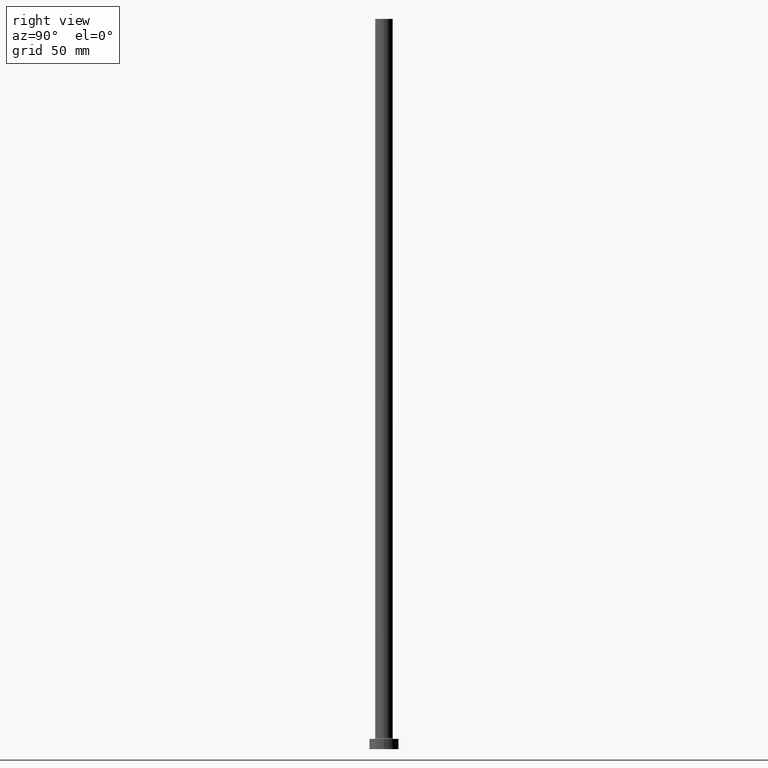
[diagram: clean part render]
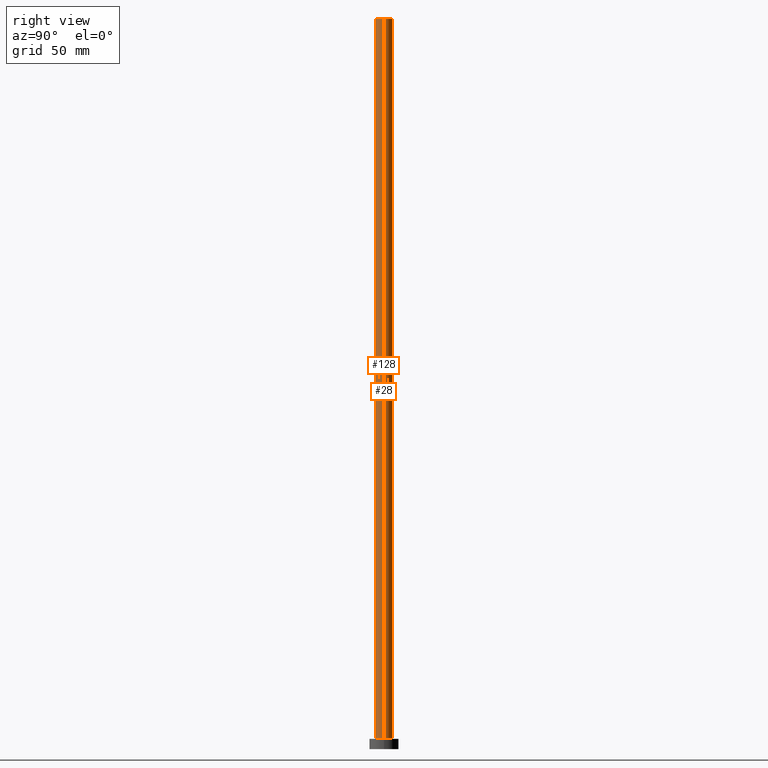
[diagram: same view with one multi-face feature highlighted, each face labeled with its STEP entity id]
A machine part, right view. The highlighted faces form ONE feature: a constant-radius fillet chain: 2 tangent blend faces with common blend radius 6 mm. The faces share edges in the B-rep.
Their STEP definitions:
[1] entity #128 (Cylinder):
#16 = DIRECTION ( 'NONE',  ( -0.000000000000000000, -0.000000000000000000, -1.000000000000000000 ) ) ;
#29 = DIRECTION ( 'NONE',  ( 1.000000000000000000, 0.000000000000000000, 0.000000000000000000 ) ) ;
#53 = CARTESIAN_POINT ( 'NONE',  ( 0.000000000000000000, 0.000000000000000000, 500.0000000000000000 ) ) ;
#85 = AXIS2_PLACEMENT_3D ( 'NONE', #53, #189, #155 ) ;
#88 = LINE ( 'NONE', #156, #272 ) ;
#96 = ORIENTED_EDGE ( 'NONE', *, *, #442, .T. ) ;
#128 = ADVANCED_FACE ( 'NONE', ( #215 ), #305, .T. ) ;
#134 = ORIENTED_EDGE ( 'NONE', *, *, #295, .T. ) ;
#140 = DIRECTION ( 'NONE',  ( -0.000000000000000000, -0.000000000000000000, -1.000000000000000000 ) ) ;
#155 = DIRECTION ( 'NONE',  ( 1.000000000000000000, 0.000000000000000000, 0.000000000000000000 ) ) ;
#156 = CARTESIAN_POINT ( 'NONE',  ( 6.000000000000000888, 7.347880794884120722E-16, 500.0000000000000000 ) ) ;
#166 = CIRCLE ( 'NONE', #257, 6.000000000000000888 ) ;
#179 = EDGE_CURVE ( 'NONE', #455, #416, #88, .T. ) ;
#189 = DIRECTION ( 'NONE',  ( 0.000000000000000000, 0.000000000000000000, 1.000000000000000000 ) ) ;
#203 = VERTEX_POINT ( 'NONE', #216 ) ;
#205 = ORIENTED_EDGE ( 'NONE', *, *, #179, .F. ) ;
#215 = FACE_OUTER_BOUND ( 'NONE', #251, .T. ) ;
#216 = CARTESIAN_POINT ( 'NONE',  ( -6.000000000000000888, 0.000000000000000000, 500.0000000000000000 ) ) ;
#219 = LINE ( 'NONE', #324, #264 ) ;
#244 = CIRCLE ( 'NONE', #85, 6.000000000000000888 ) ;
#249 = AXIS2_PLACEMENT_3D ( 'NONE', #461, #140, #269 ) ;
#251 = EDGE_LOOP ( 'NONE', ( #205, #426, #134, #96 ) ) ;
#257 = AXIS2_PLACEMENT_3D ( 'NONE', #412, #339, #29 ) ;
#259 = CARTESIAN_POINT ( 'NONE',  ( 6.000000000000000888, 7.347880794884120722E-16, 7.699999999999985079 ) ) ;
#264 = VECTOR ( 'NONE', #438, 1000.000000000000000 ) ;
#265 = EDGE_CURVE ( 'NONE', #203, #455, #244, .T. ) ;
#269 = DIRECTION ( 'NONE',  ( -1.000000000000000000, 0.000000000000000000, 0.000000000000000000 ) ) ;
#272 = VECTOR ( 'NONE', #16, 1000.000000000000000 ) ;
#295 = EDGE_CURVE ( 'NONE', #203, #373, #219, .T. ) ;
#305 = CYLINDRICAL_SURFACE ( 'NONE', #249, 6.000000000000000888 ) ;
#324 = CARTESIAN_POINT ( 'NONE',  ( -6.000000000000000888, 0.000000000000000000, 500.0000000000000000 ) ) ;
#336 = CARTESIAN_POINT ( 'NONE',  ( -6.000000000000000888, 0.000000000000000000, 7.699999999999985079 ) ) ;
#339 = DIRECTION ( 'NONE',  ( 0.000000000000000000, 0.000000000000000000, 1.000000000000000000 ) ) ;
#373 = VERTEX_POINT ( 'NONE', #336 ) ;
#412 = CARTESIAN_POINT ( 'NONE',  ( 0.000000000000000000, 0.000000000000000000, 7.699999999999985079 ) ) ;
#416 = VERTEX_POINT ( 'NONE', #259 ) ;
#426 = ORIENTED_EDGE ( 'NONE', *, *, #265, .F. ) ;
#430 = CARTESIAN_POINT ( 'NONE',  ( 6.000000000000000888, 7.347880794884120722E-16, 500.0000000000000000 ) ) ;
#438 = DIRECTION ( 'NONE',  ( -0.000000000000000000, -0.000000000000000000, -1.000000000000000000 ) ) ;
#442 = EDGE_CURVE ( 'NONE', #373, #416, #166, .T. ) ;
#455 = VERTEX_POINT ( 'NONE', #430 ) ;
#461 = CARTESIAN_POINT ( 'NONE',  ( 0.000000000000000000, 0.000000000000000000, 500.0000000000000000 ) ) ;
[2] entity #28 (Cylinder):
#16 = DIRECTION ( 'NONE',  ( -0.000000000000000000, -0.000000000000000000, -1.000000000000000000 ) ) ;
#17 = AXIS2_PLACEMENT_3D ( 'NONE', #242, #381, #428 ) ;
#28 = ADVANCED_FACE ( 'NONE', ( #235 ), #394, .T. ) ;
#37 = DIRECTION ( 'NONE',  ( 0.000000000000000000, 0.000000000000000000, 1.000000000000000000 ) ) ;
#43 = CARTESIAN_POINT ( 'NONE',  ( 0.000000000000000000, 0.000000000000000000, 500.0000000000000000 ) ) ;
#44 = AXIS2_PLACEMENT_3D ( 'NONE', #112, #309, #418 ) ;
#67 = CIRCLE ( 'NONE', #318, 6.000000000000000888 ) ;
#82 = EDGE_CURVE ( 'NONE', #455, #203, #67, .T. ) ;
#88 = LINE ( 'NONE', #156, #272 ) ;
#98 = ORIENTED_EDGE ( 'NONE', *, *, #123, .T. ) ;
#112 = CARTESIAN_POINT ( 'NONE',  ( 0.000000000000000000, 0.000000000000000000, 7.699999999999985079 ) ) ;
#123 = EDGE_CURVE ( 'NONE', #416, #373, #141, .T. ) ;
#141 = CIRCLE ( 'NONE', #44, 6.000000000000000888 ) ;
#156 = CARTESIAN_POINT ( 'NONE',  ( 6.000000000000000888, 7.347880794884120722E-16, 500.0000000000000000 ) ) ;
#175 = DIRECTION ( 'NONE',  ( 1.000000000000000000, 0.000000000000000000, 0.000000000000000000 ) ) ;
#179 = EDGE_CURVE ( 'NONE', #455, #416, #88, .T. ) ;
#196 = ORIENTED_EDGE ( 'NONE', *, *, #295, .F. ) ;
#203 = VERTEX_POINT ( 'NONE', #216 ) ;
#216 = CARTESIAN_POINT ( 'NONE',  ( -6.000000000000000888, 0.000000000000000000, 500.0000000000000000 ) ) ;
#219 = LINE ( 'NONE', #324, #264 ) ;
#235 = FACE_OUTER_BOUND ( 'NONE', #447, .T. ) ;
#242 = CARTESIAN_POINT ( 'NONE',  ( 0.000000000000000000, 0.000000000000000000, 500.0000000000000000 ) ) ;
#259 = CARTESIAN_POINT ( 'NONE',  ( 6.000000000000000888, 7.347880794884120722E-16, 7.699999999999985079 ) ) ;
#264 = VECTOR ( 'NONE', #438, 1000.000000000000000 ) ;
#272 = VECTOR ( 'NONE', #16, 1000.000000000000000 ) ;
#294 = ORIENTED_EDGE ( 'NONE', *, *, #179, .T. ) ;
#295 = EDGE_CURVE ( 'NONE', #203, #373, #219, .T. ) ;
#309 = DIRECTION ( 'NONE',  ( 0.000000000000000000, 0.000000000000000000, 1.000000000000000000 ) ) ;
#318 = AXIS2_PLACEMENT_3D ( 'NONE', #43, #37, #175 ) ;
#324 = CARTESIAN_POINT ( 'NONE',  ( -6.000000000000000888, 0.000000000000000000, 500.0000000000000000 ) ) ;
#336 = CARTESIAN_POINT ( 'NONE',  ( -6.000000000000000888, 0.000000000000000000, 7.699999999999985079 ) ) ;
#373 = VERTEX_POINT ( 'NONE', #336 ) ;
#381 = DIRECTION ( 'NONE',  ( -0.000000000000000000, -0.000000000000000000, -1.000000000000000000 ) ) ;
#385 = ORIENTED_EDGE ( 'NONE', *, *, #82, .F. ) ;
#394 = CYLINDRICAL_SURFACE ( 'NONE', #17, 6.000000000000000888 ) ;
#416 = VERTEX_POINT ( 'NONE', #259 ) ;
#418 = DIRECTION ( 'NONE',  ( 1.000000000000000000, 0.000000000000000000, 0.000000000000000000 ) ) ;
#428 = DIRECTION ( 'NONE',  ( -1.000000000000000000, 0.000000000000000000, 0.000000000000000000 ) ) ;
#430 = CARTESIAN_POINT ( 'NONE',  ( 6.000000000000000888, 7.347880794884120722E-16, 500.0000000000000000 ) ) ;
#438 = DIRECTION ( 'NONE',  ( -0.000000000000000000, -0.000000000000000000, -1.000000000000000000 ) ) ;
#447 = EDGE_LOOP ( 'NONE', ( #385, #294, #98, #196 ) ) ;
#455 = VERTEX_POINT ( 'NONE', #430 ) ;